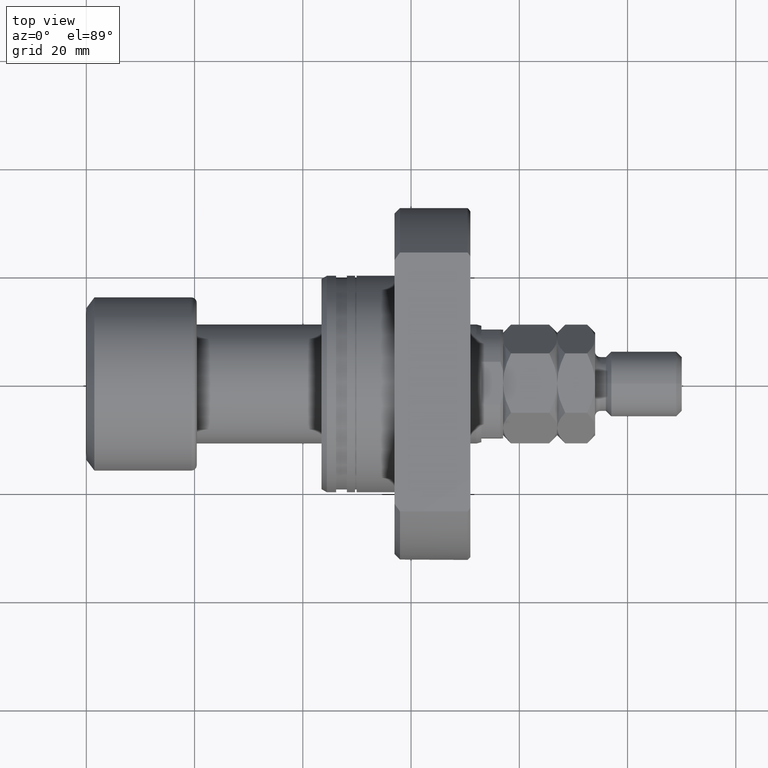
[diagram: clean part render]
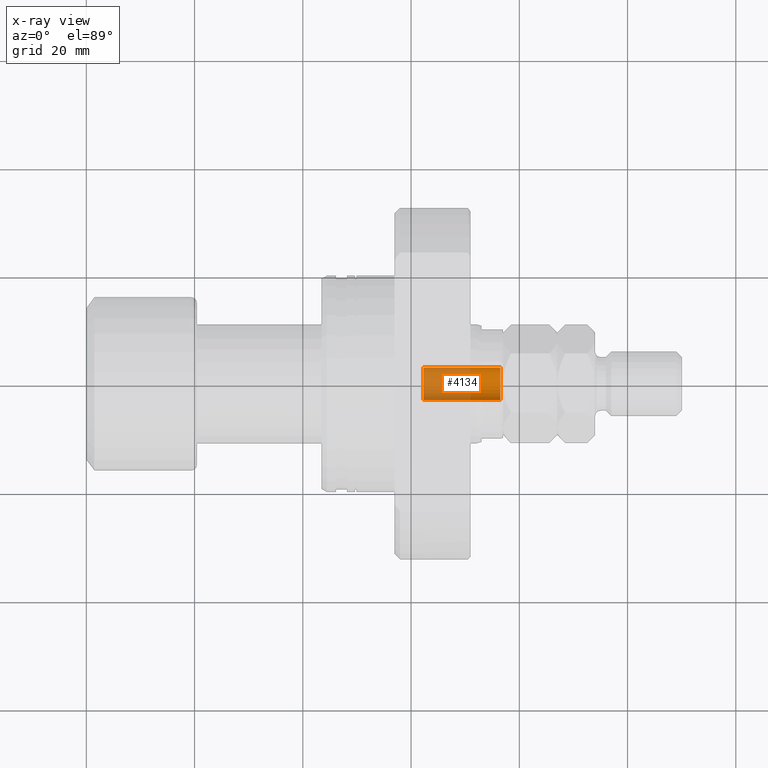
[diagram: x-ray — body ghosted, one internal face saturated and labeled with its STEP entity id]
A machine part, top view, then the same camera in x-ray: the body is ghosted and one INTERNAL B-rep face — a face not visible from any outside direction — is saturated and labeled: STEP entity #4134.
In plain terms, the highlighted cylindrical surface (edge-blend (fillet) strip) has radius 3 mm, axis along (1, -0, 0).
Its self-contained STEP definition (entity closure, byte-faithful):
#163 = CARTESIAN_POINT ( 'NONE',  ( 62.30000000000004690, 2.999999999999340972, 0.000000000000000000 ) ) ;
#348 = DIRECTION ( 'NONE',  ( 1.000000000000000000, -1.657264799492230625E-14, 0.000000000000000000 ) ) ;
#530 = VECTOR ( 'NONE', #4490, 1000.000000000000000 ) ;
#969 = LINE ( 'NONE', #163, #1312 ) ;
#1196 = LINE ( 'NONE', #4101, #530 ) ;
#1197 = DIRECTION ( 'NONE',  ( -1.850371707708363781E-14, -1.000000000000000000, 0.000000000000000000 ) ) ;
#1312 = VECTOR ( 'NONE', #4218, 1000.000000000000000 ) ;
#1418 = ORIENTED_EDGE ( 'NONE', *, *, #4352, .F. ) ;
#1528 = CARTESIAN_POINT ( 'NONE',  ( 76.50000000000014211, 2.999999999999105604, 0.000000000000000000 ) ) ;
#1679 = VERTEX_POINT ( 'NONE', #2355 ) ;
#1803 = VERTEX_POINT ( 'NONE', #2342 ) ;
#1808 = DIRECTION ( 'NONE',  ( 1.619075244244818427E-14, 1.000000000000000000, 0.000000000000000000 ) ) ;
#1876 = CARTESIAN_POINT ( 'NONE',  ( 62.30000000000000426, -1.032475970083659863E-12, 0.000000000000000000 ) ) ;
#2109 = EDGE_CURVE ( 'NONE', #4339, #1803, #1196, .T. ) ;
#2144 = ORIENTED_EDGE ( 'NONE', *, *, #3213, .F. ) ;
#2321 = AXIS2_PLACEMENT_3D ( 'NONE', #1876, #348, #1808 ) ;
#2342 = CARTESIAN_POINT ( 'NONE',  ( 76.50000000000002842, -3.000000000001640466, 3.673940397442660388E-16 ) ) ;
#2355 = CARTESIAN_POINT ( 'NONE',  ( 62.30000000000004690, 2.999999999999340972, 0.000000000000000000 ) ) ;
#2621 = AXIS2_PLACEMENT_3D ( 'NONE', #2625, #2653, #3768 ) ;
#2625 = CARTESIAN_POINT ( 'NONE',  ( 62.30000000000000426, -1.032475970083659863E-12, 0.000000000000000000 ) ) ;
#2653 = DIRECTION ( 'NONE',  ( 1.000000000000000000, -1.657264799492230625E-14, -0.000000000000000000 ) ) ;
#2996 = ORIENTED_EDGE ( 'NONE', *, *, #2109, .T. ) ;
#2998 = CYLINDRICAL_SURFACE ( 'NONE', #2621, 3.000000000000373479 ) ;
#3213 = EDGE_CURVE ( 'NONE', #4339, #1679, #4408, .T. ) ;
#3233 = EDGE_LOOP ( 'NONE', ( #2144, #2996, #4353, #1418 ) ) ;
#3256 = CIRCLE ( 'NONE', #4166, 3.000000000000373479 ) ;
#3768 = DIRECTION ( 'NONE',  ( 1.619075244244818427E-14, 1.000000000000000000, 0.000000000000000000 ) ) ;
#4101 = CARTESIAN_POINT ( 'NONE',  ( 62.29999999999995453, -3.000000000001405986, 3.673940397442516914E-16 ) ) ;
#4124 = DIRECTION ( 'NONE',  ( 1.000000000000000000, -1.657264799492235042E-14, 0.000000000000000000 ) ) ;
#4134 = ADVANCED_FACE ( 'NONE', ( #4443 ), #2998, .F. ) ;
#4144 = CARTESIAN_POINT ( 'NONE',  ( 76.50000000000008527, -1.267807571611558059E-12, 0.000000000000000000 ) ) ;
#4166 = AXIS2_PLACEMENT_3D ( 'NONE', #4144, #4124, #1197 ) ;
#4200 = EDGE_CURVE ( 'NONE', #1803, #4617, #3256, .T. ) ;
#4218 = DIRECTION ( 'NONE',  ( 1.000000000000000000, -1.657264799492230625E-14, -0.000000000000000000 ) ) ;
#4288 = CARTESIAN_POINT ( 'NONE',  ( 62.29999999999995453, -3.000000000001405986, 3.673940397442516914E-16 ) ) ;
#4339 = VERTEX_POINT ( 'NONE', #4288 ) ;
#4352 = EDGE_CURVE ( 'NONE', #1679, #4617, #969, .T. ) ;
#4353 = ORIENTED_EDGE ( 'NONE', *, *, #4200, .T. ) ;
#4408 = CIRCLE ( 'NONE', #2321, 3.000000000000373479 ) ;
#4443 = FACE_OUTER_BOUND ( 'NONE', #3233, .T. ) ;
#4490 = DIRECTION ( 'NONE',  ( 1.000000000000000000, -1.657264799492230625E-14, -0.000000000000000000 ) ) ;
#4617 = VERTEX_POINT ( 'NONE', #1528 ) ;